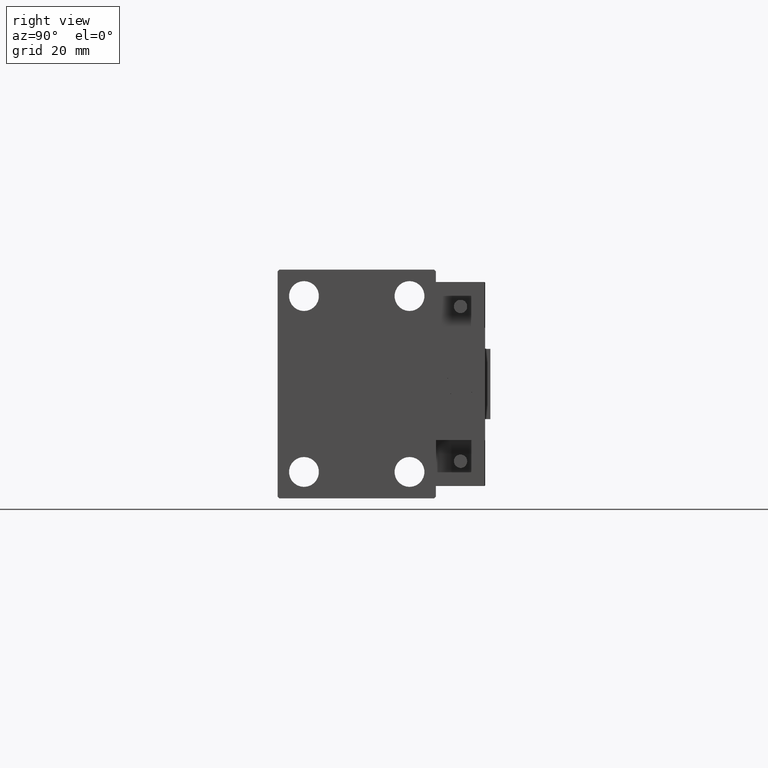
[diagram: clean part render]
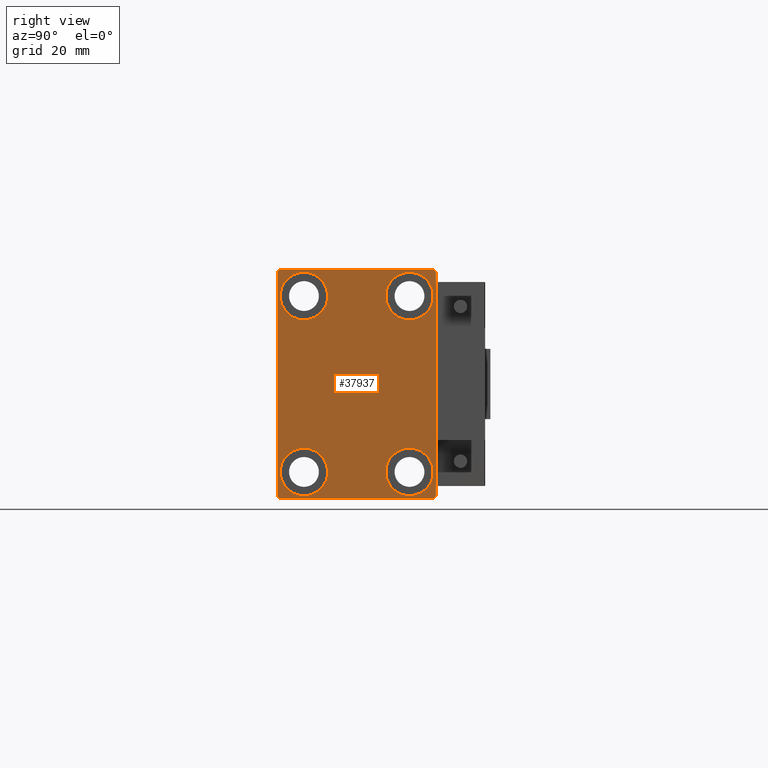
[diagram: same view with one face highlighted and labeled with its STEP entity id]
A machine part, right view. The second image highlights one B-rep face of the part: STEP entity #37937.
In plain terms, the highlighted planar face has unit normal (1, 0, 0).
Its self-contained STEP definition (entity closure, byte-faithful):
#140 = VERTEX_POINT ( 'NONE', #23164 ) ;
#474 = CARTESIAN_POINT ( 'NONE',  ( 70.00000000000000000, 15.00000000000000355, 25.00000000000000000 ) ) ;
#482 = EDGE_LOOP ( 'NONE', ( #25943, #3280, #40753, #40477, #40984, #43401, #52620, #47176 ) ) ;
#758 = CARTESIAN_POINT ( 'NONE',  ( 70.00000000000000000, 14.99999999999999645, -31.75000000000000000 ) ) ;
#971 = EDGE_LOOP ( 'NONE', ( #50092, #6404 ) ) ;
#976 = CARTESIAN_POINT ( 'NONE',  ( 70.00000000000000000, 15.00000000000000355, 31.75000000000000000 ) ) ;
#1226 = VERTEX_POINT ( 'NONE', #8966 ) ;
#2692 = AXIS2_PLACEMENT_3D ( 'NONE', #18690, #9845, #13869 ) ;
#3280 = ORIENTED_EDGE ( 'NONE', *, *, #23729, .T. ) ;
#3430 = DIRECTION ( 'NONE',  ( 0.000000000000000000, 0.000000000000000000, -1.000000000000000000 ) ) ;
#3496 = EDGE_CURVE ( 'NONE', #21935, #33590, #46167, .T. ) ;
#3950 = LINE ( 'NONE', #24656, #45020 ) ;
#4508 = VERTEX_POINT ( 'NONE', #5966 ) ;
#4585 = AXIS2_PLACEMENT_3D ( 'NONE', #15511, #40260, #3430 ) ;
#4652 = VERTEX_POINT ( 'NONE', #43519 ) ;
#4717 = AXIS2_PLACEMENT_3D ( 'NONE', #20091, #12281, #24409 ) ;
#5824 = DIRECTION ( 'NONE',  ( 0.000000000000000000, -1.067522139062650425E-16, 1.000000000000000000 ) ) ;
#5947 = EDGE_CURVE ( 'NONE', #34329, #31491, #31374, .T. ) ;
#5966 = CARTESIAN_POINT ( 'NONE',  ( 70.00000000000000000, 22.00000000000001421, -32.50000000000000711 ) ) ;
#6149 = EDGE_LOOP ( 'NONE', ( #38606, #43420 ) ) ;
#6327 = AXIS2_PLACEMENT_3D ( 'NONE', #474, #20068, #24920 ) ;
#6404 = ORIENTED_EDGE ( 'NONE', *, *, #37983, .T. ) ;
#6493 = LINE ( 'NONE', #48154, #28418 ) ;
#6803 = CARTESIAN_POINT ( 'NONE',  ( 70.00000000000000000, 22.49999999999999289, 32.50000000000000000 ) ) ;
#7199 = EDGE_CURVE ( 'NONE', #31491, #34329, #16821, .T. ) ;
#7289 = CIRCLE ( 'NONE', #4717, 6.749999999999999112 ) ;
#7620 = ORIENTED_EDGE ( 'NONE', *, *, #29497, .T. ) ;
#8053 = VERTEX_POINT ( 'NONE', #20916 ) ;
#8364 = EDGE_CURVE ( 'NONE', #140, #8053, #31259, .T. ) ;
#8624 = CARTESIAN_POINT ( 'NONE',  ( 70.00000000000000000, -22.50000000000000711, 31.99999999999999289 ) ) ;
#8880 = VERTEX_POINT ( 'NONE', #26314 ) ;
#8966 = CARTESIAN_POINT ( 'NONE',  ( 70.00000000000000000, -14.99999999999999645, 31.75000000000000000 ) ) ;
#9718 = AXIS2_PLACEMENT_3D ( 'NONE', #17604, #13032, #13309 ) ;
#9845 = DIRECTION ( 'NONE',  ( -1.000000000000000000, -0.000000000000000000, -0.000000000000000000 ) ) ;
#10759 = ORIENTED_EDGE ( 'NONE', *, *, #12817, .T. ) ;
#12281 = DIRECTION ( 'NONE',  ( -1.000000000000000000, -0.000000000000000000, -0.000000000000000000 ) ) ;
#12817 = EDGE_CURVE ( 'NONE', #1226, #4652, #29131, .T. ) ;
#13032 = DIRECTION ( 'NONE',  ( -1.000000000000000000, -0.000000000000000000, -0.000000000000000000 ) ) ;
#13309 = DIRECTION ( 'NONE',  ( 0.000000000000000000, 0.000000000000000000, 1.000000000000000000 ) ) ;
#13869 = DIRECTION ( 'NONE',  ( 0.000000000000000000, 0.000000000000000000, 1.000000000000000000 ) ) ;
#14659 = DIRECTION ( 'NONE',  ( 0.000000000000000000, 0.000000000000000000, -1.000000000000000000 ) ) ;
#14721 = DIRECTION ( 'NONE',  ( -0.000000000000000000, 0.7071067811865378028, -0.7071067811865573427 ) ) ;
#15511 = CARTESIAN_POINT ( 'NONE',  ( 70.00000000000000000, 0.000000000000000000, 0.000000000000000000 ) ) ;
#15531 = CARTESIAN_POINT ( 'NONE',  ( 70.00000000000000000, 14.99999999999999645, -25.00000000000000000 ) ) ;
#15734 = CIRCLE ( 'NONE', #6327, 6.749999999999999112 ) ;
#15771 = FACE_OUTER_BOUND ( 'NONE', #482, .T. ) ;
#15922 = CIRCLE ( 'NONE', #52026, 6.749999999999999112 ) ;
#16262 = DIRECTION ( 'NONE',  ( 0.000000000000000000, 0.000000000000000000, 1.000000000000000000 ) ) ;
#16821 = CIRCLE ( 'NONE', #23714, 6.749999999999999112 ) ;
#17024 = ORIENTED_EDGE ( 'NONE', *, *, #43133, .T. ) ;
#17604 = CARTESIAN_POINT ( 'NONE',  ( 70.00000000000000000, -14.99999999999999645, 25.00000000000000000 ) ) ;
#18014 = EDGE_CURVE ( 'NONE', #18978, #44178, #43059, .T. ) ;
#18048 = EDGE_CURVE ( 'NONE', #48710, #8880, #39159, .T. ) ;
#18324 = EDGE_CURVE ( 'NONE', #33590, #140, #6493, .T. ) ;
#18467 = DIRECTION ( 'NONE',  ( -1.000000000000000000, -0.000000000000000000, -0.000000000000000000 ) ) ;
#18690 = CARTESIAN_POINT ( 'NONE',  ( 70.00000000000000000, 15.00000000000000355, 25.00000000000000000 ) ) ;
#18978 = VERTEX_POINT ( 'NONE', #27182 ) ;
#19484 = LINE ( 'NONE', #19746, #32057 ) ;
#19538 = FACE_BOUND ( 'NONE', #22433, .T. ) ;
#19746 = CARTESIAN_POINT ( 'NONE',  ( 70.00000000000000000, -22.50000000000000711, -32.50000000000000711 ) ) ;
#20068 = DIRECTION ( 'NONE',  ( -1.000000000000000000, -0.000000000000000000, -0.000000000000000000 ) ) ;
#20091 = CARTESIAN_POINT ( 'NONE',  ( 70.00000000000000000, -15.00000000000000355, -25.00000000000000000 ) ) ;
#20916 = CARTESIAN_POINT ( 'NONE',  ( 70.00000000000000000, -21.99999999999999289, 32.49999999999999289 ) ) ;
#21393 = CARTESIAN_POINT ( 'NONE',  ( 70.00000000000000000, 14.99999999999999645, -25.00000000000000000 ) ) ;
#21926 = DIRECTION ( 'NONE',  ( 0.000000000000000000, 0.000000000000000000, 1.000000000000000000 ) ) ;
#21935 = VERTEX_POINT ( 'NONE', #33964 ) ;
#22433 = EDGE_LOOP ( 'NONE', ( #26839, #10759 ) ) ;
#22488 = DIRECTION ( 'NONE',  ( -0.000000000000000000, 0.7071067811865376918, 0.7071067811865573427 ) ) ;
#22843 = CARTESIAN_POINT ( 'NONE',  ( 70.00000000000000000, -15.00000000000000355, -31.75000000000000000 ) ) ;
#23164 = CARTESIAN_POINT ( 'NONE',  ( 70.00000000000000000, 21.99999999999999289, 32.50000000000000000 ) ) ;
#23335 = CARTESIAN_POINT ( 'NONE',  ( 70.00000000000000000, -27.25000000000032330, -27.24999999999957012 ) ) ;
#23596 = FACE_BOUND ( 'NONE', #6149, .T. ) ;
#23714 = AXIS2_PLACEMENT_3D ( 'NONE', #21393, #42106, #21926 ) ;
#23729 = EDGE_CURVE ( 'NONE', #8053, #48710, #3950, .T. ) ;
#24409 = DIRECTION ( 'NONE',  ( 0.000000000000000000, 0.000000000000000000, 1.000000000000000000 ) ) ;
#24656 = CARTESIAN_POINT ( 'NONE',  ( 70.00000000000000000, -27.25000000000000000, 27.25000000000000000 ) ) ;
#24677 = DIRECTION ( 'NONE',  ( 0.000000000000000000, 0.000000000000000000, 1.000000000000000000 ) ) ;
#24920 = DIRECTION ( 'NONE',  ( 0.000000000000000000, 0.000000000000000000, 1.000000000000000000 ) ) ;
#25664 = VECTOR ( 'NONE', #22488, 1000.000000000000114 ) ;
#25691 = AXIS2_PLACEMENT_3D ( 'NONE', #53108, #32946, #16262 ) ;
#25908 = EDGE_LOOP ( 'NONE', ( #17024, #7620 ) ) ;
#25943 = ORIENTED_EDGE ( 'NONE', *, *, #8364, .T. ) ;
#26314 = CARTESIAN_POINT ( 'NONE',  ( 70.00000000000000000, -22.50000000000000711, -32.00000000000000711 ) ) ;
#26839 = ORIENTED_EDGE ( 'NONE', *, *, #38546, .T. ) ;
#27119 = VECTOR ( 'NONE', #14721, 1000.000000000000000 ) ;
#27182 = CARTESIAN_POINT ( 'NONE',  ( 70.00000000000000000, 15.00000000000000355, 18.25000000000000355 ) ) ;
#27293 = CARTESIAN_POINT ( 'NONE',  ( 70.00000000000000000, -22.00000000000002132, -32.50000000000000711 ) ) ;
#28418 = VECTOR ( 'NONE', #43051, 999.9999999999998863 ) ;
#29131 = CIRCLE ( 'NONE', #25691, 6.749999999999999112 ) ;
#29497 = EDGE_CURVE ( 'NONE', #37321, #42872, #7289, .T. ) ;
#30548 = CARTESIAN_POINT ( 'NONE',  ( 70.00000000000000000, -22.50000000000000711, 32.49999999999999289 ) ) ;
#30565 = LINE ( 'NONE', #46975, #25664 ) ;
#30708 = EDGE_CURVE ( 'NONE', #8880, #37454, #47824, .T. ) ;
#30847 = CARTESIAN_POINT ( 'NONE',  ( 70.00000000000000000, -15.00000000000000355, -25.00000000000000000 ) ) ;
#31038 = VECTOR ( 'NONE', #14659, 1000.000000000000000 ) ;
#31259 = LINE ( 'NONE', #6803, #52062 ) ;
#31374 = CIRCLE ( 'NONE', #52858, 6.749999999999999112 ) ;
#31491 = VERTEX_POINT ( 'NONE', #49129 ) ;
#32057 = VECTOR ( 'NONE', #40208, 1000.000000000000000 ) ;
#32180 = PLANE ( 'NONE',  #4585 ) ;
#32946 = DIRECTION ( 'NONE',  ( -1.000000000000000000, -0.000000000000000000, -0.000000000000000000 ) ) ;
#33590 = VERTEX_POINT ( 'NONE', #40153 ) ;
#33964 = CARTESIAN_POINT ( 'NONE',  ( 70.00000000000000000, 22.50000000000000000, -32.00000000000002132 ) ) ;
#34329 = VERTEX_POINT ( 'NONE', #758 ) ;
#34625 = CIRCLE ( 'NONE', #9718, 6.749999999999999112 ) ;
#35429 = EDGE_CURVE ( 'NONE', #4508, #21935, #30565, .T. ) ;
#35945 = FACE_BOUND ( 'NONE', #971, .T. ) ;
#37321 = VERTEX_POINT ( 'NONE', #38608 ) ;
#37454 = VERTEX_POINT ( 'NONE', #27293 ) ;
#37937 = ADVANCED_FACE ( 'NONE', ( #23596, #19538, #35945, #52359, #15771 ), #32180, .T. ) ;
#37983 = EDGE_CURVE ( 'NONE', #44178, #18978, #15734, .T. ) ;
#38184 = EDGE_CURVE ( 'NONE', #37454, #4508, #19484, .T. ) ;
#38546 = EDGE_CURVE ( 'NONE', #4652, #1226, #34625, .T. ) ;
#38606 = ORIENTED_EDGE ( 'NONE', *, *, #5947, .T. ) ;
#38608 = CARTESIAN_POINT ( 'NONE',  ( 70.00000000000000000, -15.00000000000000355, -18.25000000000000355 ) ) ;
#39159 = LINE ( 'NONE', #30548, #31038 ) ;
#40153 = CARTESIAN_POINT ( 'NONE',  ( 70.00000000000000000, 22.49999999999999289, 31.99999999999999289 ) ) ;
#40208 = DIRECTION ( 'NONE',  ( 0.000000000000000000, 1.000000000000000000, 0.000000000000000000 ) ) ;
#40260 = DIRECTION ( 'NONE',  ( 1.000000000000000000, 0.000000000000000000, 0.000000000000000000 ) ) ;
#40477 = ORIENTED_EDGE ( 'NONE', *, *, #30708, .T. ) ;
#40753 = ORIENTED_EDGE ( 'NONE', *, *, #18048, .T. ) ;
#40984 = ORIENTED_EDGE ( 'NONE', *, *, #38184, .T. ) ;
#41320 = DIRECTION ( 'NONE',  ( 0.000000000000000000, -0.7071067811865474617, -0.7071067811865474617 ) ) ;
#42106 = DIRECTION ( 'NONE',  ( -1.000000000000000000, -0.000000000000000000, -0.000000000000000000 ) ) ;
#42448 = VECTOR ( 'NONE', #5824, 1000.000000000000000 ) ;
#42704 = DIRECTION ( 'NONE',  ( 0.000000000000000000, 0.000000000000000000, 1.000000000000000000 ) ) ;
#42872 = VERTEX_POINT ( 'NONE', #22843 ) ;
#43051 = DIRECTION ( 'NONE',  ( -0.000000000000000000, -0.7071067811865425767, 0.7071067811865525687 ) ) ;
#43059 = CIRCLE ( 'NONE', #2692, 6.749999999999999112 ) ;
#43133 = EDGE_CURVE ( 'NONE', #42872, #37321, #15922, .T. ) ;
#43401 = ORIENTED_EDGE ( 'NONE', *, *, #35429, .T. ) ;
#43420 = ORIENTED_EDGE ( 'NONE', *, *, #7199, .T. ) ;
#43519 = CARTESIAN_POINT ( 'NONE',  ( 70.00000000000000000, -14.99999999999999645, 18.25000000000000355 ) ) ;
#44178 = VERTEX_POINT ( 'NONE', #976 ) ;
#45020 = VECTOR ( 'NONE', #41320, 1000.000000000000114 ) ;
#46167 = LINE ( 'NONE', #50725, #42448 ) ;
#46975 = CARTESIAN_POINT ( 'NONE',  ( 70.00000000000000000, 27.25000000000032685, -27.24999999999957012 ) ) ;
#47176 = ORIENTED_EDGE ( 'NONE', *, *, #18324, .T. ) ;
#47824 = LINE ( 'NONE', #23335, #27119 ) ;
#48094 = DIRECTION ( 'NONE',  ( -1.000000000000000000, -0.000000000000000000, -0.000000000000000000 ) ) ;
#48154 = CARTESIAN_POINT ( 'NONE',  ( 70.00000000000000000, 27.25000000000014921, 27.24999999999976907 ) ) ;
#48710 = VERTEX_POINT ( 'NONE', #8624 ) ;
#49129 = CARTESIAN_POINT ( 'NONE',  ( 70.00000000000000000, 14.99999999999999645, -18.25000000000000355 ) ) ;
#50092 = ORIENTED_EDGE ( 'NONE', *, *, #18014, .T. ) ;
#50725 = CARTESIAN_POINT ( 'NONE',  ( 70.00000000000000000, 22.50000000000000000, -32.50000000000000711 ) ) ;
#52026 = AXIS2_PLACEMENT_3D ( 'NONE', #30847, #18467, #42704 ) ;
#52062 = VECTOR ( 'NONE', #52227, 1000.000000000000000 ) ;
#52227 = DIRECTION ( 'NONE',  ( 0.000000000000000000, -1.000000000000000000, -1.541976423090495387E-16 ) ) ;
#52359 = FACE_BOUND ( 'NONE', #25908, .T. ) ;
#52620 = ORIENTED_EDGE ( 'NONE', *, *, #3496, .T. ) ;
#52858 = AXIS2_PLACEMENT_3D ( 'NONE', #15531, #48094, #24677 ) ;
#53108 = CARTESIAN_POINT ( 'NONE',  ( 70.00000000000000000, -14.99999999999999645, 25.00000000000000000 ) ) ;